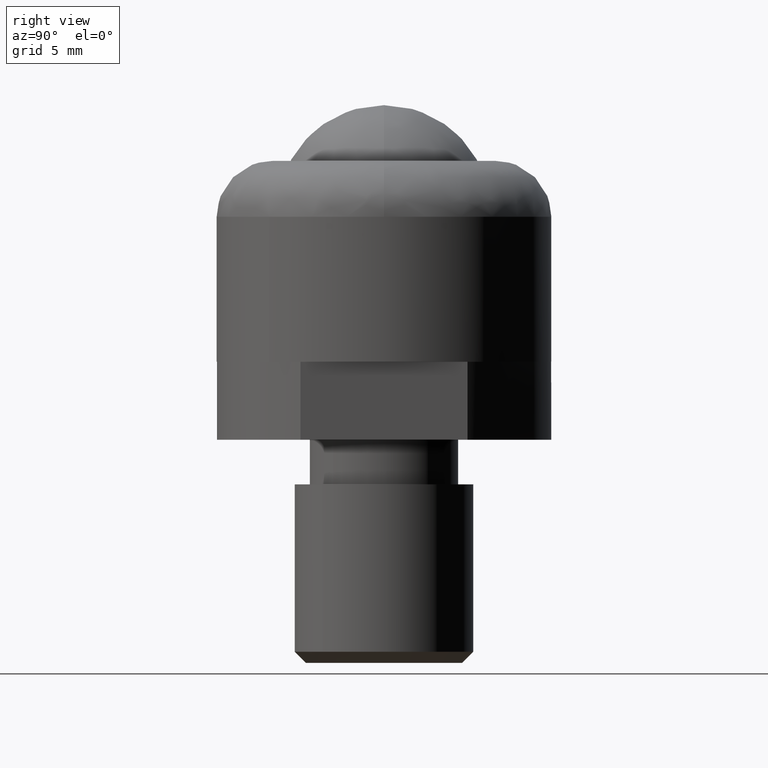
[diagram: clean part render]
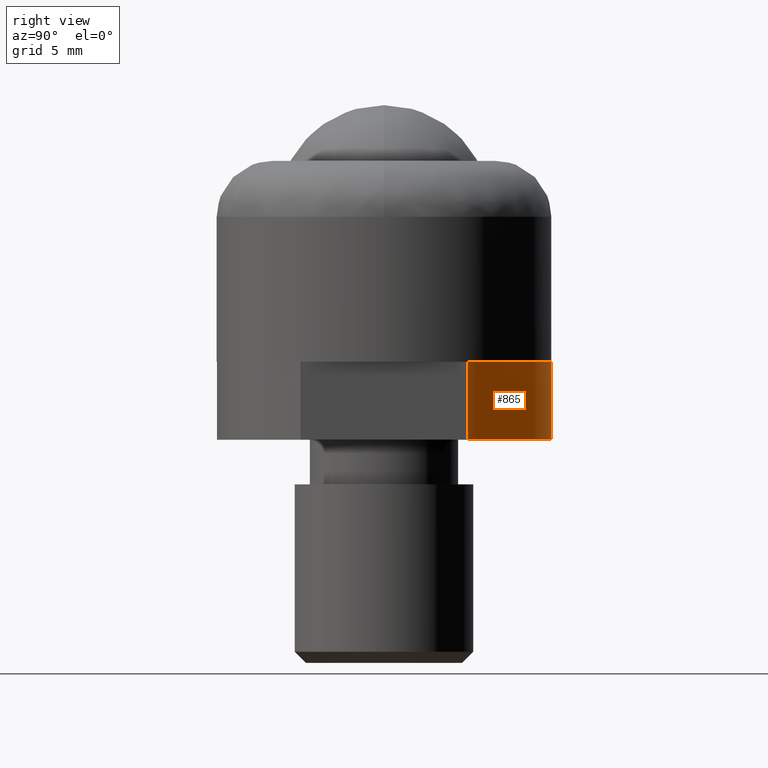
[diagram: same view with one face highlighted and labeled with its STEP entity id]
A machine part, right view. The second image highlights one B-rep face of the part: STEP entity #865.
In plain terms, the highlighted face is a freeform B-spline surface patch.
Its self-contained STEP definition (entity closure, byte-faithful):
#658=CARTESIAN_POINT('',(6.500000000000000,3.741657386773960,0.0));
#659=VERTEX_POINT('',#658);
#665=CARTESIAN_POINT('',(-6.500000000000000,3.741657386773945,0.0));
#666=VERTEX_POINT('',#665);
#667=CARTESIAN_POINT('',(-6.500000000000000,3.741657386773945,0.0));
#668=CARTESIAN_POINT('',(-6.316121373867259,4.061121082347639,0.0));
#669=CARTESIAN_POINT('',(-5.866561654019554,4.723846514197773,0.0));
#670=CARTESIAN_POINT('',(-5.034867971966824,5.606400839556147,0.0));
#671=CARTESIAN_POINT('',(-4.166015866116909,6.262907246594082,0.0));
#672=CARTESIAN_POINT('',(-3.345686928134745,6.728280711217245,0.0));
#673=CARTESIAN_POINT('',(-2.517814259464584,7.087686771939394,0.0));
#674=CARTESIAN_POINT('',(-1.471457679641224,7.386898747753751,0.0));
#675=CARTESIAN_POINT('',(-0.206088747038480,7.537934784361706,0.0));
#676=CARTESIAN_POINT('',(1.025727445036386,7.462143198967119,0.0));
#677=CARTESIAN_POINT('',(2.046856429001763,7.232504084063316,0.0));
#678=CARTESIAN_POINT('',(2.859870717968783,6.948709085872402,0.0));
#679=CARTESIAN_POINT('',(3.657003135076932,6.571180059655812,0.0));
#680=CARTESIAN_POINT('',(4.435061924765959,6.073238960010387,0.0));
#681=CARTESIAN_POINT('',(5.237700838545596,5.402328060220613,0.0));
#682=CARTESIAN_POINT('',(5.926836296666864,4.640408745529744,0.0));
#683=CARTESIAN_POINT('',(6.336547038475398,4.025622134202731,0.0));
#684=CARTESIAN_POINT('',(6.500000000000000,3.741657386773960,0.0));
#685=B_SPLINE_CURVE_WITH_KNOTS('',3,(#667,#668,#669,#670,#671,#672,#673,#674,#675,#676,#677,#678,#679,#680,#681,#682,#683,#684),.UNSPECIFIED.,.F.,.U.,(4,1,1,1,1,1,1,1,1,1,1,1,1,1,1,4),(6.115723E-009,1.105811161856225,2.395943893194991,3.624642545928241,4.361860603407859,5.221950063001717,6.327768999081114,7.617899152158165,9.030887753234239,10.013837600598450,10.751059429353701,11.611145456101861,12.655538595508821,13.515624348462760,14.744319942805131,15.727266542327779),.UNSPECIFIED.);
#686=EDGE_CURVE('',#666,#659,#685,.T.);
#727=CARTESIAN_POINT('',(6.500000000000000,3.741657386773960,-3.499999999999950));
#728=VERTEX_POINT('',#727);
#757=CARTESIAN_POINT('',(-6.500000000000000,3.741657386773945,-3.499999999999950));
#758=VERTEX_POINT('',#757);
#764=CARTESIAN_POINT('',(-6.500000000000000,3.741657386773945,-3.499999999999950));
#765=CARTESIAN_POINT('',(-6.224235039555047,4.220895824910869,-3.499999999999957));
#766=CARTESIAN_POINT('',(-5.651348156723611,5.001617898358892,-3.499999999999925));
#767=CARTESIAN_POINT('',(-4.760531161454642,5.823839796016742,-3.499999999999986));
#768=CARTESIAN_POINT('',(-4.023336363580437,6.343822400104379,-3.499999999999891));
#769=CARTESIAN_POINT('',(-3.238699169436151,6.789005822579193,-3.500000000000092));
#770=CARTESIAN_POINT('',(-2.229430971100028,7.198001631582306,-3.499999999999760));
#771=CARTESIAN_POINT('',(-1.165624910353982,7.432582512152226,-3.500000000000071));
#772=CARTESIAN_POINT('',(-0.021308744725032,7.526550326561916,-3.499999999999860));
#773=CARTESIAN_POINT('',(1.025725001468258,7.462145869800784,-3.499999999999960));
#774=CARTESIAN_POINT('',(2.046856797501979,7.232503694985994,-3.499999999999960));
#775=CARTESIAN_POINT('',(2.859870718837093,6.948709080006261,-3.499999999999948));
#776=CARTESIAN_POINT('',(3.657003134900085,6.571180060850554,-3.499999999999950));
#777=CARTESIAN_POINT('',(4.435061924816876,6.073238959666403,-3.499999999999941));
#778=CARTESIAN_POINT('',(5.237700838526783,5.402328060347696,-3.500000000000012));
#779=CARTESIAN_POINT('',(5.926836296672887,4.640408745489081,-3.499999999999778));
#780=CARTESIAN_POINT('',(6.336547038474402,4.025622134209427,-3.500000000000180));
#781=CARTESIAN_POINT('',(6.500000000000000,3.741657386773960,-3.499999999999950));
#782=B_SPLINE_CURVE_WITH_KNOTS('',3,(#764,#765,#766,#767,#768,#769,#770,#771,#772,#773,#774,#775,#776,#777,#778,#779,#780,#781),.UNSPECIFIED.,.F.,.U.,(4,1,1,1,1,1,1,1,1,1,1,1,1,1,1,4),(6.115723E-009,1.658732826058888,2.887424461768577,3.624642545928241,4.361860603407859,5.590559164388301,6.880684249032591,7.617899152158165,9.030887753234239,10.013837600598450,10.751059429353701,11.611145456101861,12.655538595508821,13.515624348462760,14.744319942805131,15.727266542327779),.UNSPECIFIED.);
#783=EDGE_CURVE('',#758,#728,#782,.T.);
#831=CARTESIAN_POINT('',(-6.500000000000000,3.741657386773945,-3.499999999999950));
#832=CARTESIAN_POINT('',(-6.500000000000000,3.741657386773945,0.0));
#833=QUASI_UNIFORM_CURVE('',1,(#831,#832),.UNSPECIFIED.,.F.,.U.);
#834=EDGE_CURVE('',#758,#666,#833,.T.);
#841=CARTESIAN_POINT('',(-6.648129287422099,3.471653349302100,-3.587499999999949));
#842=CARTESIAN_POINT('',(-6.648129287422099,3.471653349302100,0.089687499999999));
#843=CARTESIAN_POINT('',(0.314930105916083,16.805737840259983,-3.587499999999950));
#844=CARTESIAN_POINT('',(0.314930105916083,16.805737840259983,0.089687499999999));
#845=CARTESIAN_POINT('',(6.773529724355018,3.220138983534560,-3.587499999999949));
#846=CARTESIAN_POINT('',(6.773529724355018,3.220138983534560,0.089687499999999));
#854=(BOUNDED_SURFACE()B_SPLINE_SURFACE(1,2,((#841,#843,#845),(#842,#844,#846)),.UNSPECIFIED.,.F.,.F.,.U.)B_SPLINE_SURFACE_WITH_KNOTS((2,2),(3,3),(0.0,3.677187499999948),(0.0,18.564563301564188),.UNSPECIFIED.)GEOMETRIC_REPRESENTATION_ITEM()RATIONAL_B_SPLINE_SURFACE(((1.0,0.446197813109809,1.0),(1.0,0.446197813109809,1.0)))REPRESENTATION_ITEM('')SURFACE());
#855=ORIENTED_EDGE('',*,*,#686,.T.);
#856=CARTESIAN_POINT('',(6.500000000000000,3.741657386773960,-3.499999999999950));
#857=CARTESIAN_POINT('',(6.500000000000000,3.741657386773960,0.0));
#858=QUASI_UNIFORM_CURVE('',1,(#856,#857),.UNSPECIFIED.,.F.,.U.);
#859=EDGE_CURVE('',#728,#659,#858,.T.);
#860=ORIENTED_EDGE('',*,*,#859,.F.);
#861=ORIENTED_EDGE('',*,*,#783,.F.);
#862=ORIENTED_EDGE('',*,*,#834,.T.);
#863=EDGE_LOOP('',(#855,#860,#861,#862));
#864=FACE_OUTER_BOUND('',#863,.T.);
#865=ADVANCED_FACE('',(#864),#854,.T.);